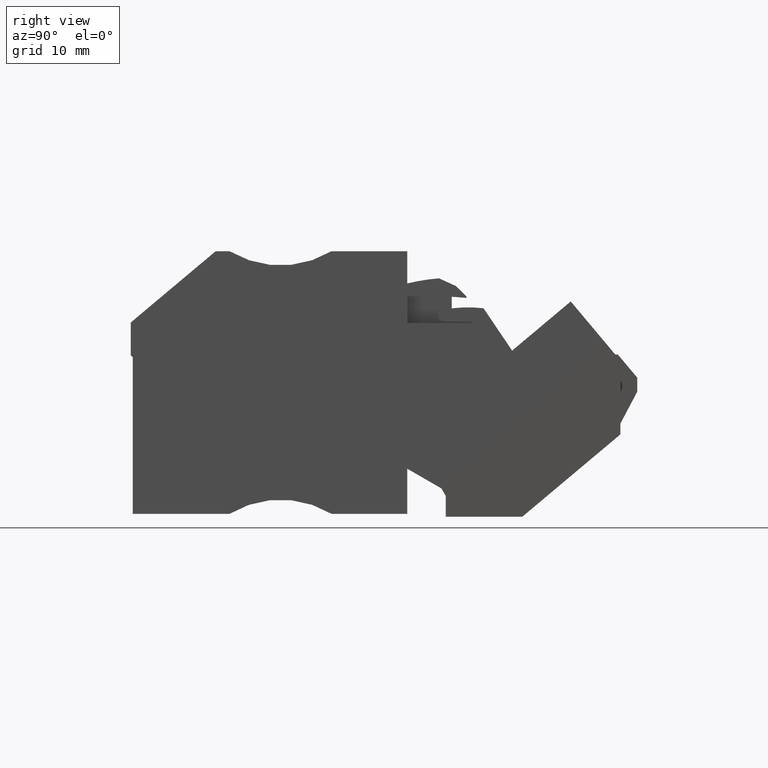
[diagram: clean part render]
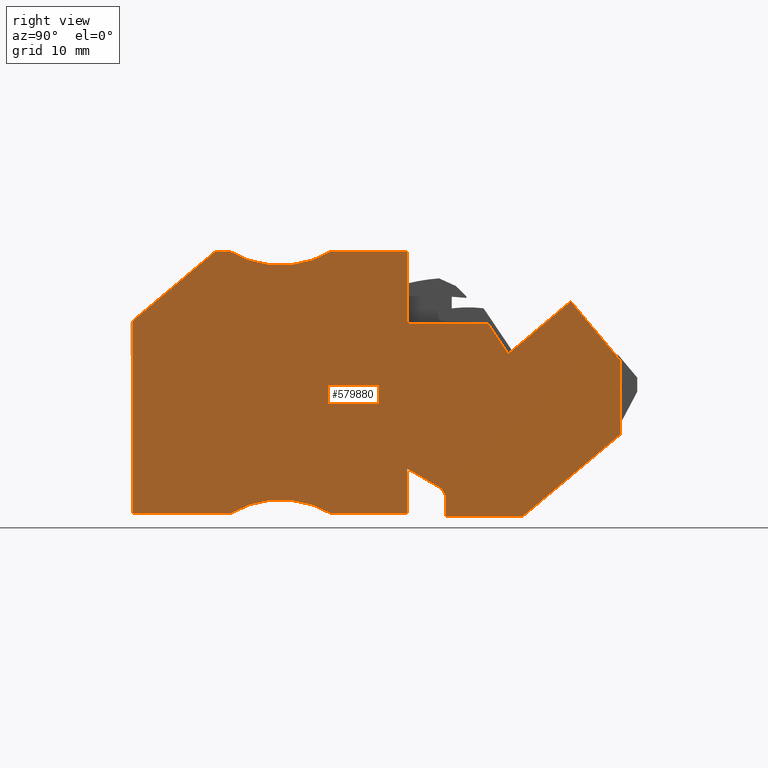
[diagram: same view with one face highlighted and labeled with its STEP entity id]
A machine part, right view. The second image highlights one B-rep face of the part: STEP entity #579880.
In plain terms, the highlighted planar face has unit normal (1, 0, -0).
Its self-contained STEP definition (entity closure, byte-faithful):
#575200=CARTESIAN_POINT('',(420.453158767227,690.486358063659,
111.819999980427));
#575210=VERTEX_POINT('',#575200);
#575240=CARTESIAN_POINT('',(420.453158759934,686.450091418326,
111.81999998214));
#575250=DIRECTION('',(-1.80696546614432E-9,-1.,4.24416371870361E-10));
#575260=VECTOR('',#575250,1.);
#575270=LINE('',#575240,#575260);
#575280=CARTESIAN_POINT('',(420.453158731897,670.934347665954,
111.819999988725));
#575290=VERTEX_POINT('',#575280);
#575300=EDGE_CURVE('',#575210,#575290,#575270,.T.);
#575790=CARTESIAN_POINT('',(428.852625735951,697.534347670068,
111.819999975957));
#575800=VERTEX_POINT('',#575790);
#575850=CARTESIAN_POINT('',(418.25846166376,688.644788548051,
111.819999981594));
#575860=DIRECTION('',(0.766044444670996,0.642787607836916,
-4.07600435471174E-10));
#575870=VECTOR('',#575860,1.);
#575880=LINE('',#575850,#575870);
#575890=EDGE_CURVE('',#575210,#575800,#575880,.T.);
#576440=CARTESIAN_POINT('',(430.260883731268,697.534347668252,
111.81999997973));
#576450=VERTEX_POINT('',#576440);
#576480=CARTESIAN_POINT('',(459.468902532296,697.534347633188,
111.81999997057));
#576490=DIRECTION('',(1.,-1.20456350449778E-9,-1.7595690306274E-10));
#576500=VECTOR('',#576490,1.);
#576510=LINE('',#576480,#576500);
#576520=EDGE_CURVE('',#575800,#576450,#576510,.T.);
#576760=CARTESIAN_POINT('',(440.590572492979,697.534347641925,
111.819999978407));
#576770=VERTEX_POINT('',#576760);
#576800=CARTESIAN_POINT('',(435.425728133952,706.0973134101,
111.819999975091));
#576810=DIRECTION('',(1.28100595517667E-10,4.64504649617954E-10,1.));
#576820=DIRECTION('',(0.707106782058739,0.707106780314356,
-4.19035115678159E-10));
#576830=AXIS2_PLACEMENT_3D('',#576800,#576810,#576820);
#576840=CIRCLE('',#576830,10.);
#576850=EDGE_CURVE('',#576450,#576770,#576840,.T.);
#577060=CARTESIAN_POINT('',(448.253158742575,697.534347632694,
111.819999977426));
#577070=VERTEX_POINT('',#577060);
#577100=CARTESIAN_POINT('',(409.36890252385,697.534347679533,
111.819999982426));
#577110=DIRECTION('',(-1.,1.20456378205352E-9,1.28100328869811E-10));
#577120=VECTOR('',#577110,1.);
#577130=LINE('',#577100,#577120);
#577140=EDGE_CURVE('',#577070,#576770,#577130,.T.);
#577370=CARTESIAN_POINT('',(448.253158733782,690.234347632766,
111.819999980816));
#577380=VERTEX_POINT('',#577370);
#577410=CARTESIAN_POINT('',(448.253158729065,686.318603610515,
111.819999982635));
#577420=DIRECTION('',(-1.20456361551975E-9,-1.,4.64504820525951E-10));
#577430=VECTOR('',#577420,1.);
#577440=LINE('',#577410,#577430);
#577450=EDGE_CURVE('',#577070,#577380,#577440,.T.);
#577710=CARTESIAN_POINT('',(456.411547090758,690.234347622938,
111.819999974207));
#577720=VERTEX_POINT('',#577710);
#577750=CARTESIAN_POINT('',(412.568902749411,690.23434767575,
111.819999981921));
#577760=DIRECTION('',(-1.,1.20456478125426E-9,1.75956911828149E-10));
#577770=VECTOR('',#577760,1.);
#577780=LINE('',#577750,#577770);
#577790=EDGE_CURVE('',#577720,#577380,#577780,.T.);
#577960=CARTESIAN_POINT('',(471.149558074012,668.384347726275,
111.819999980887));
#577970=DIRECTION('',(0.559192902426276,-0.829037573259547,
2.53463132922706E-10));
#577980=VECTOR('',#577970,1.);
#577990=LINE('',#577960,#577980);
#578000=CARTESIAN_POINT('',(458.497798357054,687.141352921524,
111.819999975152));
#578010=VERTEX_POINT('',#578000);
#578020=EDGE_CURVE('',#577720,#578010,#577990,.T.);
#578380=CARTESIAN_POINT('',(469.85315871647,678.981362855746,
111.819999976617));
#578390=VERTEX_POINT('',#578380);
#578420=CARTESIAN_POINT('',(469.853158751326,707.918603579491,
111.819999964336));
#578430=DIRECTION('',(1.20455911911653E-9,1.,-4.24416471219152E-10));
#578440=VECTOR('',#578430,1.);
#578450=LINE('',#578420,#578440);
#578460=CARTESIAN_POINT('',(469.853158725464,686.448039221025,
111.819999973448));
#578470=VERTEX_POINT('',#578460);
#578480=EDGE_CURVE('',#578390,#578470,#578450,.T.);
#578760=CARTESIAN_POINT('',(459.905573291746,670.634347618431,
111.81999998191));
#578770=VERTEX_POINT('',#578760);
#578800=CARTESIAN_POINT('',(447.05326750659,659.849982604917,
111.819999988749));
#578810=DIRECTION('',(-0.766044444016711,-0.642787608616663,
4.07600244682758E-10));
#578820=VECTOR('',#578810,1.);
#578830=LINE('',#578800,#578820);
#578840=EDGE_CURVE('',#578390,#578770,#578830,.T.);
#578980=CARTESIAN_POINT('',(434.418902613078,672.484347528094,
111.81999998561));
#578990=DIRECTION('',(1.75956914421888E-10,4.2441642785003E-10,1.));
#579000=DIRECTION('',(0.707106780334796,-0.707106782038299,
1.75687407306717E-10));
#579010=AXIS2_PLACEMENT_3D('',#578980,#578990,#579000);
#579020=PLANE('',#579010);
#579030=CARTESIAN_POINT('',(448.253158716042,675.507552711425,
111.819999981892));
#579040=VERTEX_POINT('',#579030);
#579050=CARTESIAN_POINT('',(448.253158710534,670.934347632467,
111.819999989781));
#579060=VERTEX_POINT('',#579050);
#579070=EDGE_CURVE('',#579040,#579060,#577440,.T.);
#579080=ORIENTED_EDGE('',*,*,#579070,.F.);
#579090=CARTESIAN_POINT('',(435.968902489257,670.934347647264,
111.819999991355));
#579100=DIRECTION('',(1.,-1.20456572494381E-9,-1.28100291599098E-10));
#579110=VECTOR('',#579100,1.);
#579120=LINE('',#579090,#579110);
#579130=CARTESIAN_POINT('',(440.590572462966,670.934347641714,
111.819999990763));
#579140=VERTEX_POINT('',#579130);
#579150=EDGE_CURVE('',#579140,#579060,#579120,.T.);
#579160=ORIENTED_EDGE('',*,*,#579150,.T.);
#579170=CARTESIAN_POINT('',(435.425728082797,662.371381886285,
111.819999995402));
#579180=DIRECTION('',(1.28100595517667E-10,4.64504649617954E-10,1.));
#579190=DIRECTION('',(0.707106782058739,0.707106780314356,
-4.19035115678159E-10));
#579200=AXIS2_PLACEMENT_3D('',#579170,#579180,#579190);
#579210=CIRCLE('',#579200,10.);
#579220=CARTESIAN_POINT('',(430.26088372323,670.93434765414,
111.819999992086));
#579230=VERTEX_POINT('',#579220);
#579240=EDGE_CURVE('',#579140,#579230,#579210,.T.);
#579250=ORIENTED_EDGE('',*,*,#579240,.F.);
#579260=CARTESIAN_POINT('',(435.668902491276,670.934347647626,
111.819999991393));
#579270=DIRECTION('',(1.,-1.20456572494381E-9,-1.2810032886981E-10));
#579280=VECTOR('',#579270,1.);
#579290=LINE('',#579260,#579280);
#579300=EDGE_CURVE('',#575290,#579230,#579290,.T.);
#579310=ORIENTED_EDGE('',*,*,#579300,.T.);
#579320=ORIENTED_EDGE('',*,*,#575300,.T.);
#579330=ORIENTED_EDGE('',*,*,#575890,.F.);
#579340=ORIENTED_EDGE('',*,*,#576520,.F.);
#579350=ORIENTED_EDGE('',*,*,#576850,.F.);
#579360=ORIENTED_EDGE('',*,*,#577140,.T.);
#579370=ORIENTED_EDGE('',*,*,#577450,.F.);
#579380=ORIENTED_EDGE('',*,*,#577790,.T.);
#579390=ORIENTED_EDGE('',*,*,#578020,.F.);
#579400=CARTESIAN_POINT('',(434.418902600258,666.93676043186,
111.819999987964));
#579410=DIRECTION('',(0.766044443506207,0.642787609225058,
-4.07600241177514E-10));
#579420=VECTOR('',#579410,1.);
#579430=LINE('',#579400,#579420);
#579440=CARTESIAN_POINT('',(464.82000701167,692.446315865348,
111.819999971788));
#579450=VERTEX_POINT('',#579440);
#579460=EDGE_CURVE('',#578010,#579450,#579430,.T.);
#579470=ORIENTED_EDGE('',*,*,#579460,.F.);
#579480=CARTESIAN_POINT('',(460.057092043955,698.122536896286,
111.819999970217));
#579490=DIRECTION('',(-0.642787609225153,0.766044443506127,
-2.12018918733443E-10));
#579500=VECTOR('',#579490,1.);
#579510=LINE('',#579480,#579500);
#579520=EDGE_CURVE('',#578470,#579450,#579510,.T.);
#579530=ORIENTED_EDGE('',*,*,#579520,.T.);
#579540=ORIENTED_EDGE('',*,*,#578480,.T.);
#579550=ORIENTED_EDGE('',*,*,#578840,.F.);
#579560=CARTESIAN_POINT('',(436.268902490897,670.634347646903,
111.819999986069));
#579570=DIRECTION('',(1.,-1.20456572494383E-9,-1.75956908679912E-10));
#579580=VECTOR('',#579570,1.);
#579590=LINE('',#579560,#579580);
#579600=CARTESIAN_POINT('',(452.153158705871,670.634347627769,
111.819999983274));
#579610=VERTEX_POINT('',#579600);
#579620=EDGE_CURVE('',#579610,#578770,#579590,.T.);
#579630=ORIENTED_EDGE('',*,*,#579620,.T.);
#579640=CARTESIAN_POINT('',(452.153158724522,686.118603850313,
111.819999976703));
#579650=DIRECTION('',(1.20456272734136E-9,1.,-4.24416190185318E-10));
#579660=VECTOR('',#579650,1.);
#579670=LINE('',#579640,#579660);
#579680=CARTESIAN_POINT('',(452.153158708426,672.755886659193,
111.819999982374));
#579690=VERTEX_POINT('',#579680);
#579700=EDGE_CURVE('',#579610,#579690,#579670,.T.);
#579710=ORIENTED_EDGE('',*,*,#579700,.F.);
#579720=CARTESIAN_POINT('',(66.4180494980448,1340.86869593328,
111.819999766689));
#579730=DIRECTION('',(-0.499999998956815,0.866025404386722,
-2.79576749618894E-10));
#579740=VECTOR('',#579730,1.);
#579750=LINE('',#579720,#579740);
#579760=CARTESIAN_POINT('',(451.720146007283,673.505886659982,
111.819999982132));
#579770=VERTEX_POINT('',#579760);
#579780=EDGE_CURVE('',#579690,#579770,#579750,.T.);
#579790=ORIENTED_EDGE('',*,*,#579780,.F.);
#579800=CARTESIAN_POINT('',(443.998522777337,677.963967922774,
111.819999981598));
#579810=DIRECTION('',(0.866025403182159,-0.50000000104318,
5.9824925418767E-11));
#579820=VECTOR('',#579810,1.);
#579830=LINE('',#579800,#579820);
#579840=EDGE_CURVE('',#579040,#579770,#579830,.T.);
#579850=ORIENTED_EDGE('',*,*,#579840,.T.);
#579860=EDGE_LOOP('',(#579850,#579790,#579710,#579630,#579550,#579540,
#579530,#579470,#579390,#579380,#579370,#579360,#579350,#579340,#579330,
#579320,#579310,#579250,#579160,#579080));
#579870=FACE_OUTER_BOUND('',#579860,.T.);
#579880=ADVANCED_FACE('',(#579870),#579020,.T.);